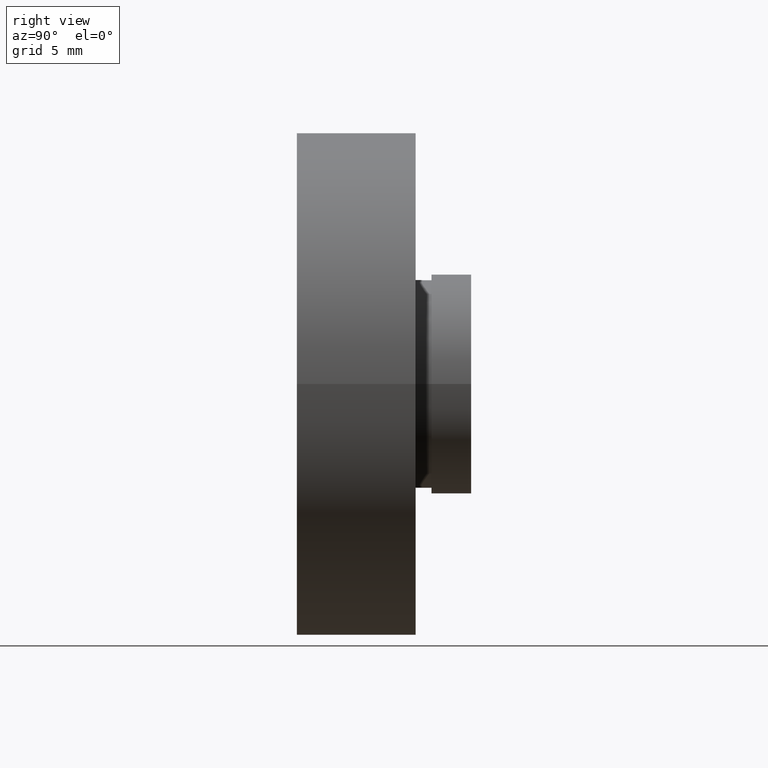
[diagram: clean part render]
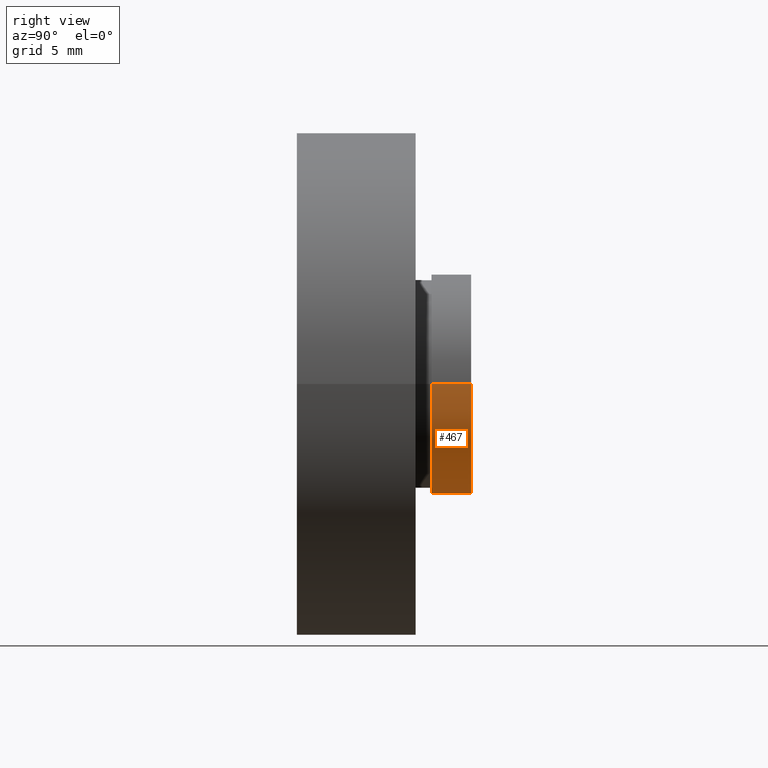
[diagram: same view with one face highlighted and labeled with its STEP entity id]
A machine part, right view. The second image highlights one B-rep face of the part: STEP entity #467.
In plain terms, the highlighted cylindrical surface (partial cylindrical patch) has radius 6.9 mm, axis along (-0, 1, -0).
Its self-contained STEP definition (entity closure, byte-faithful):
#3 = CIRCLE ( 'NONE', #43, 6.900000000000000400 ) ;
#4 = CARTESIAN_POINT ( 'NONE',  ( 7.208293393765501500E-016, 10.99999999999999600, 0.0000000000000000000 ) ) ;
#9 = DIRECTION ( 'NONE',  ( -1.224646799147351000E-016, 1.000000000000000000, -0.0000000000000000000 ) ) ;
#43 = AXIS2_PLACEMENT_3D ( 'NONE', #505, #215, #160 ) ;
#57 = EDGE_CURVE ( 'NONE', #506, #360, #217, .T. ) ;
#137 = EDGE_CURVE ( 'NONE', #360, #387, #141, .T. ) ;
#141 = CIRCLE ( 'NONE', #474, 6.900000000000001200 ) ;
#160 = DIRECTION ( 'NONE',  ( -1.000000000000000000, 0.0000000000000000000, 0.0000000000000000000 ) ) ;
#168 = VECTOR ( 'NONE', #479, 1000.000000000000000 ) ;
#170 = ORIENTED_EDGE ( 'NONE', *, *, #57, .F. ) ;
#174 = AXIS2_PLACEMENT_3D ( 'NONE', #573, #330, #386 ) ;
#199 = EDGE_CURVE ( 'NONE', #506, #304, #3, .T. ) ;
#202 = DIRECTION ( 'NONE',  ( -1.224646799147351000E-016, 1.000000000000000000, -0.0000000000000000000 ) ) ;
#215 = DIRECTION ( 'NONE',  ( -1.224646799147351000E-016, 1.000000000000000000, -0.0000000000000000000 ) ) ;
#217 = LINE ( 'NONE', #489, #590 ) ;
#238 = EDGE_LOOP ( 'NONE', ( #170, #371, #527, #434 ) ) ;
#288 = CARTESIAN_POINT ( 'NONE',  ( -6.900000000000001200, 16.88601823708207700, 0.0000000000000000000 ) ) ;
#293 = LINE ( 'NONE', #288, #168 ) ;
#304 = VERTEX_POINT ( 'NONE', #461 ) ;
#330 = DIRECTION ( 'NONE',  ( -1.224646799147351000E-016, 1.000000000000000000, -0.0000000000000000000 ) ) ;
#339 = CYLINDRICAL_SURFACE ( 'NONE', #174, 6.900000000000001200 ) ;
#347 = DIRECTION ( 'NONE',  ( -1.000000000000000000, 0.0000000000000000000, 0.0000000000000000000 ) ) ;
#360 = VERTEX_POINT ( 'NONE', #610 ) ;
#371 = ORIENTED_EDGE ( 'NONE', *, *, #199, .T. ) ;
#386 = DIRECTION ( 'NONE',  ( -1.000000000000000000, 0.0000000000000000000, 0.0000000000000000000 ) ) ;
#387 = VERTEX_POINT ( 'NONE', #516 ) ;
#434 = ORIENTED_EDGE ( 'NONE', *, *, #137, .F. ) ;
#461 = CARTESIAN_POINT ( 'NONE',  ( -6.899999999999999500, 8.500000000000000000, 0.0000000000000000000 ) ) ;
#467 = ADVANCED_FACE ( 'NONE', ( #607 ), #339, .T. ) ;
#474 = AXIS2_PLACEMENT_3D ( 'NONE', #4, #202, #347 ) ;
#476 = CARTESIAN_POINT ( 'NONE',  ( 6.900000000000001200, 8.500000000000000000, 8.450062914116738600E-016 ) ) ;
#479 = DIRECTION ( 'NONE',  ( -1.224646799147351000E-016, 1.000000000000000000, -0.0000000000000000000 ) ) ;
#482 = EDGE_CURVE ( 'NONE', #304, #387, #293, .T. ) ;
#489 = CARTESIAN_POINT ( 'NONE',  ( 6.900000000000001200, 16.88601823708207700, 8.450062914116738600E-016 ) ) ;
#505 = CARTESIAN_POINT ( 'NONE',  ( 1.026991039163387500E-015, 8.500000000000000000, 0.0000000000000000000 ) ) ;
#506 = VERTEX_POINT ( 'NONE', #476 ) ;
#516 = CARTESIAN_POINT ( 'NONE',  ( -6.900000000000000400, 10.99999999999999600, 0.0000000000000000000 ) ) ;
#527 = ORIENTED_EDGE ( 'NONE', *, *, #482, .T. ) ;
#573 = CARTESIAN_POINT ( 'NONE',  ( 0.0000000000000000000, 16.88601823708207700, 0.0000000000000000000 ) ) ;
#590 = VECTOR ( 'NONE', #9, 1000.000000000000000 ) ;
#607 = FACE_OUTER_BOUND ( 'NONE', #238, .T. ) ;
#610 = CARTESIAN_POINT ( 'NONE',  ( 6.900000000000002100, 10.99999999999999600, 8.450062914116738600E-016 ) ) ;